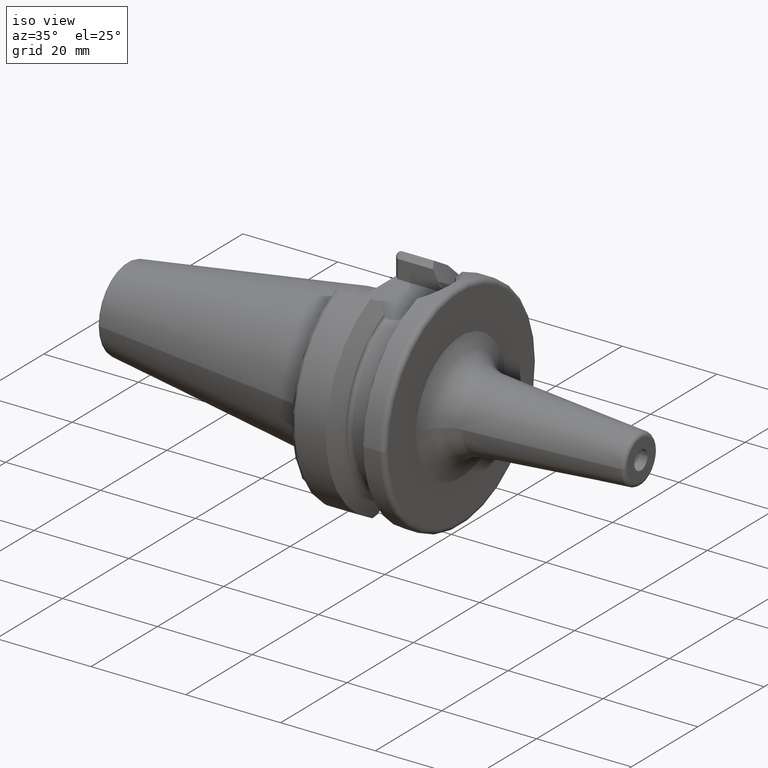
[diagram: clean part render]
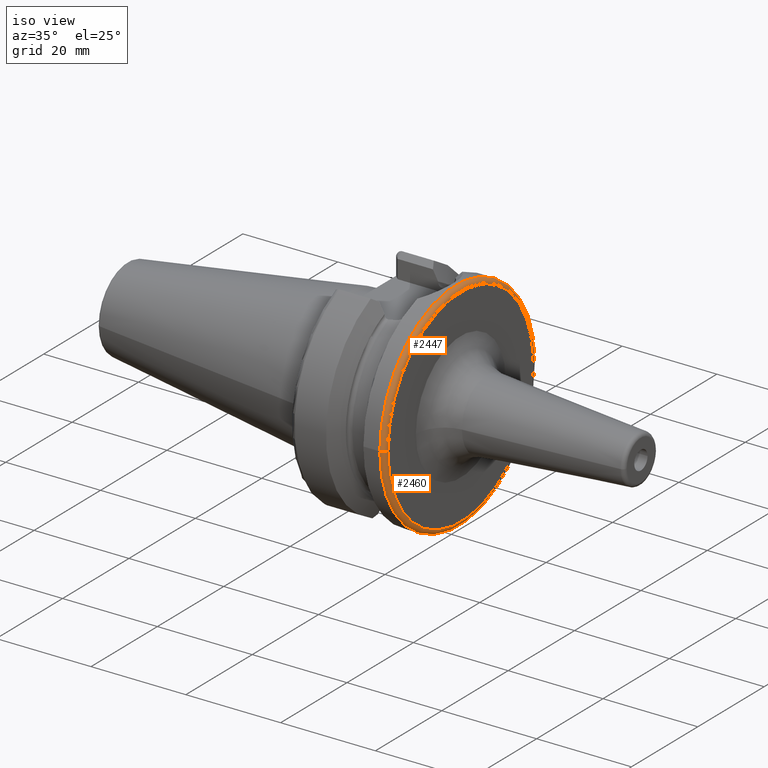
[diagram: same view with one multi-face feature highlighted, each face labeled with its STEP entity id]
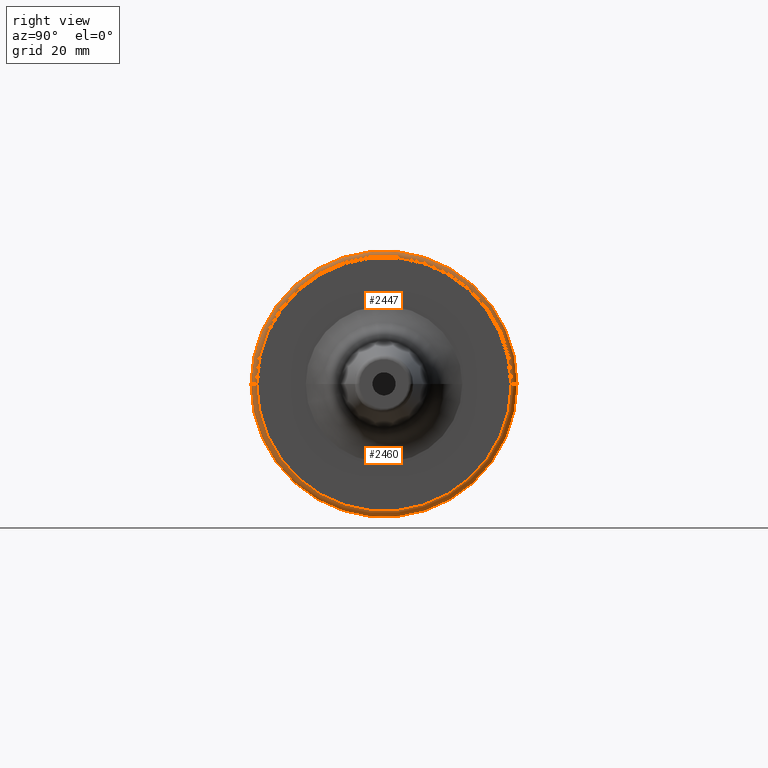
[diagram: same view with one multi-face feature highlighted, each face labeled with its STEP entity id]
A machine part, iso view. The highlighted faces form ONE feature: a constant-radius fillet chain: 2 tangent blend faces with common blend radius 1 mm. The faces share edges in the B-rep.
A second angle (right view) of the same feature is appended — it is thin or edge-on in the first view.
Their STEP definitions:
[1] entity #2460 (Torus):
#235=CARTESIAN_POINT('',(2.1E1,0.E0,0.E0));
#236=DIRECTION('',(-1.E0,0.E0,0.E0));
#237=DIRECTION('',(0.E0,1.E0,0.E0));
#238=AXIS2_PLACEMENT_3D('',#235,#236,#237);
#807=CARTESIAN_POINT('',(2.1E1,2.199E1,0.E0));
#808=DIRECTION('',(0.E0,0.E0,1.E0));
#809=DIRECTION('',(1.E0,0.E0,0.E0));
#810=AXIS2_PLACEMENT_3D('',#807,#808,#809);
#812=CARTESIAN_POINT('',(2.1E1,-2.199E1,0.E0));
#813=DIRECTION('',(0.E0,0.E0,-1.E0));
#814=DIRECTION('',(1.E0,0.E0,0.E0));
#815=AXIS2_PLACEMENT_3D('',#812,#813,#814);
#817=CARTESIAN_POINT('',(2.2E1,0.E0,0.E0));
#818=DIRECTION('',(-1.E0,0.E0,0.E0));
#819=DIRECTION('',(0.E0,1.E0,0.E0));
#820=AXIS2_PLACEMENT_3D('',#817,#818,#819);
#1202=CARTESIAN_POINT('',(2.1E1,2.299E1,0.E0));
#1203=VERTEX_POINT('',#1202);
#1204=CARTESIAN_POINT('',(2.1E1,-2.299E1,0.E0));
#1205=VERTEX_POINT('',#1204);
#1272=CARTESIAN_POINT('',(2.2E1,2.199E1,0.E0));
#1273=VERTEX_POINT('',#1272);
#1274=CARTESIAN_POINT('',(2.2E1,-2.199E1,0.E0));
#1275=VERTEX_POINT('',#1274);
#2448=CARTESIAN_POINT('',(2.1E1,0.E0,0.E0));
#2449=DIRECTION('',(1.E0,0.E0,0.E0));
#2450=DIRECTION('',(0.E0,-1.E0,0.E0));
#2451=AXIS2_PLACEMENT_3D('',#2448,#2449,#2450);
#2452=TOROIDAL_SURFACE('',#2451,2.199E1,1.E0);
#2453=ORIENTED_EDGE('',*,*,#2438,.T.);
#2454=ORIENTED_EDGE('',*,*,#1692,.T.);
#2455=ORIENTED_EDGE('',*,*,#2442,.F.);
#2457=ORIENTED_EDGE('',*,*,#2456,.F.);
#2458=EDGE_LOOP('',(#2453,#2454,#2455,#2457));
#2459=FACE_OUTER_BOUND('',#2458,.F.);
#2460=ADVANCED_FACE('',(#2459),#2452,.T.);
#239=CIRCLE('',#238,2.299E1);
#811=CIRCLE('',#810,1.E0);
#816=CIRCLE('',#815,1.E0);
#821=CIRCLE('',#820,2.199E1);
#1692=EDGE_CURVE('',#1203,#1205,#239,.T.);
#2438=EDGE_CURVE('',#1273,#1203,#811,.T.);
#2442=EDGE_CURVE('',#1275,#1205,#816,.T.);
#2456=EDGE_CURVE('',#1273,#1275,#821,.T.);
[2] entity #2447 (Torus):
#778=CARTESIAN_POINT('',(2.1E1,0.E0,0.E0));
#779=DIRECTION('',(1.E0,0.E0,0.E0));
#780=DIRECTION('',(0.E0,1.E0,0.E0));
#781=AXIS2_PLACEMENT_3D('',#778,#779,#780);
#802=CARTESIAN_POINT('',(2.2E1,0.E0,0.E0));
#803=DIRECTION('',(1.E0,0.E0,0.E0));
#804=DIRECTION('',(0.E0,1.E0,0.E0));
#805=AXIS2_PLACEMENT_3D('',#802,#803,#804);
#807=CARTESIAN_POINT('',(2.1E1,2.199E1,0.E0));
#808=DIRECTION('',(0.E0,0.E0,1.E0));
#809=DIRECTION('',(1.E0,0.E0,0.E0));
#810=AXIS2_PLACEMENT_3D('',#807,#808,#809);
#812=CARTESIAN_POINT('',(2.1E1,-2.199E1,0.E0));
#813=DIRECTION('',(0.E0,0.E0,-1.E0));
#814=DIRECTION('',(1.E0,0.E0,0.E0));
#815=AXIS2_PLACEMENT_3D('',#812,#813,#814);
#1202=CARTESIAN_POINT('',(2.1E1,2.299E1,0.E0));
#1203=VERTEX_POINT('',#1202);
#1204=CARTESIAN_POINT('',(2.1E1,-2.299E1,0.E0));
#1205=VERTEX_POINT('',#1204);
#1272=CARTESIAN_POINT('',(2.2E1,2.199E1,0.E0));
#1273=VERTEX_POINT('',#1272);
#1274=CARTESIAN_POINT('',(2.2E1,-2.199E1,0.E0));
#1275=VERTEX_POINT('',#1274);
#2433=CARTESIAN_POINT('',(2.1E1,0.E0,0.E0));
#2434=DIRECTION('',(1.E0,0.E0,0.E0));
#2435=DIRECTION('',(0.E0,-1.E0,0.E0));
#2436=AXIS2_PLACEMENT_3D('',#2433,#2434,#2435);
#2437=TOROIDAL_SURFACE('',#2436,2.199E1,1.E0);
#2439=ORIENTED_EDGE('',*,*,#2438,.F.);
#2441=ORIENTED_EDGE('',*,*,#2440,.T.);
#2443=ORIENTED_EDGE('',*,*,#2442,.T.);
#2444=ORIENTED_EDGE('',*,*,#2424,.F.);
#2445=EDGE_LOOP('',(#2439,#2441,#2443,#2444));
#2446=FACE_OUTER_BOUND('',#2445,.F.);
#2447=ADVANCED_FACE('',(#2446),#2437,.T.);
#782=CIRCLE('',#781,2.299E1);
#806=CIRCLE('',#805,2.199E1);
#811=CIRCLE('',#810,1.E0);
#816=CIRCLE('',#815,1.E0);
#2424=EDGE_CURVE('',#1203,#1205,#782,.T.);
#2438=EDGE_CURVE('',#1273,#1203,#811,.T.);
#2440=EDGE_CURVE('',#1273,#1275,#806,.T.);
#2442=EDGE_CURVE('',#1275,#1205,#816,.T.);